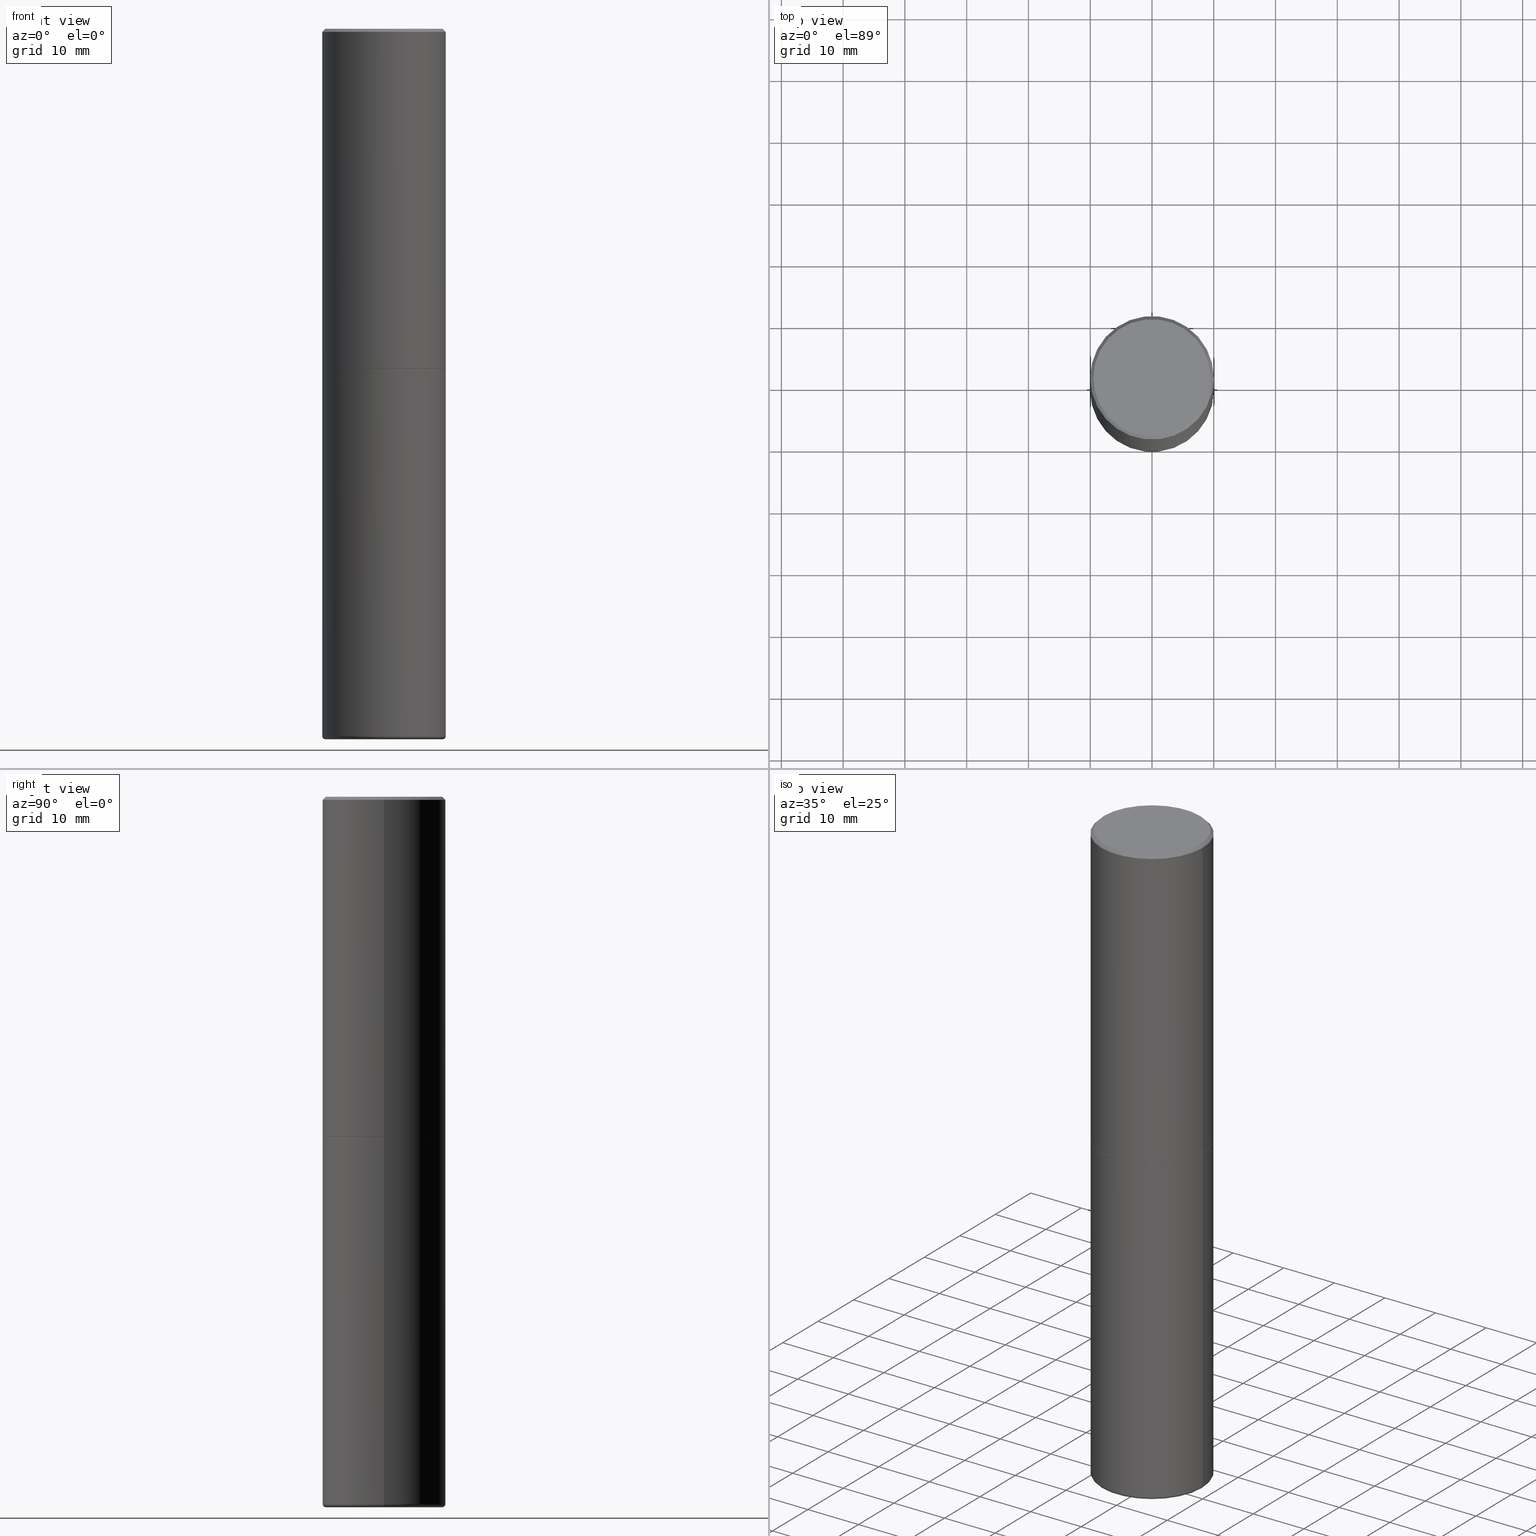
[diagram: canonical four-view strip — front | top / right | iso, engineering-drawing reading convention]
A machine part, canonical four-view strip (front | top / right | iso — engineering-drawing reading convention). The complete STEP part file that produces these views, byte-faithful:
ISO-10303-21;
HEADER;
FILE_DESCRIPTION (( 'STEP AP203' ),
    '1' );
FILE_NAME ('74527.STEP',
    '2024-03-06T15:23:57',
    ( '' ),
    ( '' ),
    'SwSTEP 2.0',
    'SolidWorks 2023',
    '' );
FILE_SCHEMA (( 'CONFIG_CONTROL_DESIGN' ));
ENDSEC;

DATA;
#1 = EDGE_CURVE ( 'NONE', #403, #349, #362, .T. ) ;
#2 = APPROVAL_DATE_TIME ( #31, #148 ) ;
#3 = CARTESIAN_POINT ( 'NONE',  ( 0.3739999999999999991, -1.841965895120088790E-14, -4.527599999999999625 ) ) ;
#4 = SECURITY_CLASSIFICATION_LEVEL ( 'unclassified' ) ;
#5 = EDGE_LOOP ( 'NONE', ( #146, #252, #20, #372 ) ) ;
#6 = FACE_OUTER_BOUND ( 'NONE', #28, .T. ) ;
#7 = EDGE_CURVE ( 'NONE', #373, #185, #165, .T. ) ;
#8 = AXIS2_PLACEMENT_3D ( 'NONE', #131, #330, #40 ) ;
#9 = AXIS2_PLACEMENT_3D ( 'NONE', #140, #273, #198 ) ;
#10 = CYLINDRICAL_SURFACE ( 'NONE', #414, 0.3936999999999999389 ) ;
#11 = DIRECTION ( 'NONE',  ( -2.445468806185136877E-29, 3.491481338843145188E-15, 1.000000000000000000 ) ) ;
#12 = PERSON_AND_ORGANIZATION ( #123, #90 ) ;
#13 = ORIENTED_EDGE ( 'NONE', *, *, #1, .F. ) ;
#14 = DIRECTION ( 'NONE',  ( 1.000000000000000000, -6.982962677686269866E-15, 0.000000000000000000 ) ) ;
#15 = CARTESIAN_POINT ( 'NONE',  ( -0.3937000000000001609, 2.797406750687515575E-15, -1.936584745033357296E-29 ) ) ;
#16 = VERTEX_POINT ( 'NONE', #392 ) ;
#17 = ORIENTED_EDGE ( 'NONE', *, *, #160, .T. ) ;
#18 = AXIS2_PLACEMENT_3D ( 'NONE', #58, #91, #294 ) ;
#19 = CC_DESIGN_DATE_AND_TIME_ASSIGNMENT ( #33, #68, ( #277 ) ) ;
#20 = ORIENTED_EDGE ( 'NONE', *, *, #301, .F. ) ;
#21 = ORIENTED_EDGE ( 'NONE', *, *, #223, .F. ) ;
#22 = AXIS2_PLACEMENT_3D ( 'NONE', #41, #52, #214 ) ;
#23 = LOCAL_TIME ( 10, 23, 57.00000000000000000, #178 ) ;
#24 = PLANE ( 'NONE',  #105 ) ;
#25 = EDGE_CURVE ( 'NONE', #185, #179, #264, .T. ) ;
#26 = CARTESIAN_POINT ( 'NONE',  ( 0.000000000000000000, 0.000000000000000000, 0.000000000000000000 ) ) ;
#27 = PERSON_AND_ORGANIZATION ( #123, #90 ) ;
#28 = EDGE_LOOP ( 'NONE', ( #222, #315, #312, #408 ) ) ;
#29 = CIRCLE ( 'NONE', #360, 0.3739999999999999991 ) ;
#30 = DIRECTION ( 'NONE',  ( 1.000000000000000000, -6.982962677686269866E-15, 0.000000000000000000 ) ) ;
#31 = DATE_AND_TIME ( #356, #116 ) ;
#32 = DIRECTION ( 'NONE',  ( 0.7071067811866199593, -2.468850131083015945E-15, 0.7071067811864750752 ) ) ;
#33 = DATE_AND_TIME ( #297, #227 ) ;
#34 = ORIENTED_EDGE ( 'NONE', *, *, #1, .T. ) ;
#35 = DIRECTION ( 'NONE',  ( 1.000000000000000000, -6.982962677686268288E-15, 0.000000000000000000 ) ) ;
#36 = ORIENTED_EDGE ( 'NONE', *, *, #57, .T. ) ;
#37 = TOROIDAL_SURFACE ( 'NONE', #8, 0.3739999999999999991, 0.01969999999999985998 ) ;
#38 = AXIS2_PLACEMENT_3D ( 'NONE', #233, #232, #363 ) ;
#39 = DIRECTION ( 'NONE',  ( -2.445468806185136877E-29, 3.491481338843145188E-15, 1.000000000000000000 ) ) ;
#40 = DIRECTION ( 'NONE',  ( 1.000000000000000000, -6.982962677686270655E-15, 4.883557194083114022E-29 ) ) ;
#41 = CARTESIAN_POINT ( 'NONE',  ( 5.295418152913293224E-29, -7.560453691130945845E-15, -2.165399999999999547 ) ) ;
#42 = CALENDAR_DATE ( 2024, 6, 3 ) ;
#43 = DIRECTION ( 'NONE',  ( -2.445468806185136597E-29, 3.491481338843145583E-15, 1.000000000000000000 ) ) ;
#44 = DIRECTION ( 'NONE',  ( 1.000000000000000000, -6.982962677686266711E-15, 4.876176775795935793E-29 ) ) ;
#45 = ORIENTED_EDGE ( 'NONE', *, *, #286, .T. ) ;
#46 = AXIS2_PLACEMENT_3D ( 'NONE', #134, #389, #299 ) ;
#47 = CYLINDRICAL_SURFACE ( 'NONE', #260, 0.3937000000000001609 ) ;
#48 = DIRECTION ( 'NONE',  ( -2.438088387897960049E-29, 3.491481338843145188E-15, 1.000000000000000000 ) ) ;
#49 = VERTEX_POINT ( 'NONE', #3 ) ;
#50 = ORIENTED_EDGE ( 'NONE', *, *, #25, .T. ) ;
#51 = FACE_OUTER_BOUND ( 'NONE', #225, .T. ) ;
#52 = DIRECTION ( 'NONE',  ( -2.445468806185136597E-29, 3.491481338843145583E-15, 1.000000000000000000 ) ) ;
#53 = ORIENTED_EDGE ( 'NONE', *, *, #257, .F. ) ;
#54 = EDGE_CURVE ( 'NONE', #378, #403, #269, .T. ) ;
#55 = APPROVAL_PERSON_ORGANIZATION ( #12, #202, #398 ) ;
#56 = EDGE_LOOP ( 'NONE', ( #256, #189 ) ) ;
#57 = EDGE_CURVE ( 'NONE', #349, #182, #226, .T. ) ;
#58 = CARTESIAN_POINT ( 'NONE',  ( 4.890937612370294178E-31, -6.982962677686321191E-17, -0.02000000000000008715 ) ) ;
#59 = AXIS2_PLACEMENT_3D ( 'NONE', #307, #104, #336 ) ;
#60 = AXIS2_PLACEMENT_3D ( 'NONE', #158, #350, #196 ) ;
#61 = APPROVAL_STATUS ( 'not_yet_approved' ) ;
#62 = CC_DESIGN_PERSON_AND_ORGANIZATION_ASSIGNMENT ( #155, #211, ( #138 ) ) ;
#63 = DIRECTION ( 'NONE',  ( -2.445468806185136597E-29, 3.491481338843145583E-15, 1.000000000000000000 ) ) ;
#64 = PLANE ( 'NONE',  #341 ) ;
#65 = APPROVAL_ROLE ( '' ) ;
#66 = AXIS2_PLACEMENT_3D ( 'NONE', #103, #200, #126 ) ;
#67 = CARTESIAN_POINT ( 'NONE',  ( 5.295418152913293224E-29, -7.560453691130945845E-15, -2.165399999999999547 ) ) ;
#68 = DATE_TIME_ROLE ( 'creation_date' ) ;
#69 = ADVANCED_FACE ( 'NONE', ( #237 ), #89, .T. ) ;
#70 = CARTESIAN_POINT ( 'NONE',  ( 0.3937000000000001609, -2.749192406205084400E-15, 1.919750796630860732E-29 ) ) ;
#71 = VECTOR ( 'NONE', #239, 39.37007874015748143 ) ;
#72 = FACE_OUTER_BOUND ( 'NONE', #218, .T. ) ;
#73 = DIRECTION ( 'NONE',  ( -2.445468806185136597E-29, 3.491481338843145583E-15, 1.000000000000000000 ) ) ;
#74 = CARTESIAN_POINT ( 'NONE',  ( 0.3937000000000000499, -2.770807688499515734E-15, -0.02000000000000008715 ) ) ;
#75 = DIRECTION ( 'NONE',  ( 2.445468806185136597E-29, -3.491481338843145583E-15, -1.000000000000000000 ) ) ;
#76 = FACE_OUTER_BOUND ( 'NONE', #118, .T. ) ;
#77 = CARTESIAN_POINT ( 'NONE',  ( 1.102392883140197736E-28, -1.573924872737101586E-14, -4.507899999999999352 ) ) ;
#78 = VECTOR ( 'NONE', #32, 39.37007874015748143 ) ;
#79 = LINE ( 'NONE', #244, #71 ) ;
#80 = CARTESIAN_POINT ( 'NONE',  ( -0.3936999999999999389, -1.294184197668350187E-14, -4.507899999999999352 ) ) ;
#81 = APPROVAL ( #61, 'UNSPECIFIED' ) ;
#82 = ADVANCED_FACE ( 'NONE', ( #72 ), #37, .T. ) ;
#83 = LOCAL_TIME ( 10, 23, 57.00000000000000000, #337 ) ;
#84 = EDGE_CURVE ( 'NONE', #378, #141, #332, .T. ) ;
#85 = ORIENTED_EDGE ( 'NONE', *, *, #381, .F. ) ;
#86 = ORIENTED_EDGE ( 'NONE', *, *, #203, .T. ) ;
#87 = EDGE_CURVE ( 'NONE', #182, #349, #255, .T. ) ;
#88 = VERTEX_POINT ( 'NONE', #212 ) ;
#89 = CONICAL_SURFACE ( 'NONE', #317, 0.3926999999999999935, 0.7853981633975507526 ) ;
#90 = ORGANIZATION ( 'UNSPECIFIED', 'UNSPECIFIED', '' ) ;
#91 = DIRECTION ( 'NONE',  ( 2.445468806185136597E-29, -3.491481338843145583E-15, -1.000000000000000000 ) ) ;
#92 = COORDINATED_UNIVERSAL_TIME_OFFSET ( 5, 0, .BEHIND. ) ;
#93 = DIRECTION ( 'NONE',  ( 2.438088387897960049E-29, -3.491481338843145188E-15, -1.000000000000000000 ) ) ;
#94 = DIRECTION ( 'NONE',  ( 1.000000000000000000, -6.982962677686268288E-15, 0.000000000000000000 ) ) ;
#95 = DIRECTION ( 'NONE',  ( 1.000000000000000000, -6.982962677686266711E-15, 4.876176775795935793E-29 ) ) ;
#96 = CIRCLE ( 'NONE', #156, 0.01969999999999985998 ) ;
#97 = EDGE_CURVE ( 'NONE', #145, #185, #122, .T. ) ;
#98 = MANIFOLD_SOLID_BREP ( 'Body-Move/Copy2[1]', #186 ) ;
#99 = APPLICATION_PROTOCOL_DEFINITION ( 'international standard', 'config_control_design', 1994, #133 ) ;
#100 = CARTESIAN_POINT ( 'NONE',  ( -0.3936999999999999389, 2.797406750687513998E-15, -1.936584745033356455E-29 ) ) ;
#101 = PERSON_AND_ORGANIZATION ( #123, #90 ) ;
#102 = ADVANCED_FACE ( 'NONE', ( #106 ), #47, .T. ) ;
#103 = CARTESIAN_POINT ( 'NONE',  ( -0.3739999999999999991, -1.308181889562824196E-14, -4.507899999999999352 ) ) ;
#104 = DIRECTION ( 'NONE',  ( -2.445468806185136597E-29, 3.491481338843145583E-15, 1.000000000000000000 ) ) ;
#105 = AXIS2_PLACEMENT_3D ( 'NONE', #388, #93, #194 ) ;
#106 = FACE_OUTER_BOUND ( 'NONE', #190, .T. ) ;
#107 = DIRECTION ( 'NONE',  ( -2.445468806185136597E-29, 3.491481338843145583E-15, 1.000000000000000000 ) ) ;
#108 = CARTESIAN_POINT ( 'NONE',  ( 1.102392883140197736E-28, -1.573924872737101586E-14, -4.507899999999999352 ) ) ;
#109 = DIRECTION ( 'NONE',  ( -6.982962677686266711E-15, -1.000000000000000000, 3.491481338843145583E-15 ) ) ;
#110 = DATE_AND_TIME ( #271, #83 ) ;
#111 = ORIENTED_EDGE ( 'NONE', *, *, #160, .F. ) ;
#112 = DIRECTION ( 'NONE',  ( -1.000000000000000000, 6.982962677686265922E-15, -4.876176775795935793E-29 ) ) ;
#113 = CARTESIAN_POINT ( 'NONE',  ( 5.295418152913293224E-29, -7.560453691130945845E-15, -2.165399999999999547 ) ) ;
#114 = ORIENTED_EDGE ( 'NONE', *, *, #415, .T. ) ;
#115 = ORIENTED_EDGE ( 'NONE', *, *, #302, .T. ) ;
#116 = LOCAL_TIME ( 10, 23, 57.00000000000000000, #167 ) ;
#117 = EDGE_LOOP ( 'NONE', ( #280, #45, #282, #308 ) ) ;
#118 = EDGE_LOOP ( 'NONE', ( #314, #249 ) ) ;
#119 =( GEOMETRIC_REPRESENTATION_CONTEXT ( 3 ) GLOBAL_UNCERTAINTY_ASSIGNED_CONTEXT ( ( #327 ) ) GLOBAL_UNIT_ASSIGNED_CONTEXT ( ( #151, #412, #154 ) ) REPRESENTATION_CONTEXT ( 'NONE', 'WORKASPACE' ) );
#120 = ORIENTED_EDGE ( 'NONE', *, *, #87, .F. ) ;
#121 = DIRECTION ( 'NONE',  ( 1.000000000000000000, 0.000000000000000000, 0.000000000000000000 ) ) ;
#122 = CIRCLE ( 'NONE', #213, 0.3936999999999999389 ) ;
#123 = PERSON ( 'UNSPECIFIED', 'UNSPECIFIED', 'UNSPECIFIED', ('UNSPECIFIED'), ('UNSPECIFIED'), ('UNSPECIFIED') ) ;
#124 = LENGTH_MEASURE_WITH_UNIT ( LENGTH_MEASURE( 0.02539999999999999897 ), #291 );
#125 = CARTESIAN_POINT ( 'NONE',  ( 1.107210456688382298E-28, -1.580803090974622389E-14, -4.527599999999999625 ) ) ;
#126 = DIRECTION ( 'NONE',  ( -1.000000000000000000, 7.105427357600978193E-15, 0.000000000000000000 ) ) ;
#127 = FACE_OUTER_BOUND ( 'NONE', #56, .T. ) ;
#128 = VECTOR ( 'NONE', #400, 39.37007874015748143 ) ;
#129 = AXIS2_PLACEMENT_3D ( 'NONE', #292, #234, #94 ) ;
#130 = PERSON_AND_ORGANIZATION ( #123, #90 ) ;
#131 = CARTESIAN_POINT ( 'NONE',  ( 1.102392883140197736E-28, -1.573924872737101586E-14, -4.507899999999999352 ) ) ;
#132 = DIRECTION ( 'NONE',  ( 1.000000000000000000, -6.982962677686265133E-15, 0.000000000000000000 ) ) ;
#133 = APPLICATION_CONTEXT ( 'configuration controlled 3d designs of mechanical parts and assemblies' ) ;
#134 = CARTESIAN_POINT ( 'NONE',  ( 4.890937612370294178E-31, -6.982962677686321191E-17, -0.02000000000000008715 ) ) ;
#135 = ADVANCED_FACE ( 'NONE', ( #76 ), #139, .F. ) ;
#136 = AXIS2_PLACEMENT_3D ( 'NONE', #77, #107, #172 ) ;
#137 = DIRECTION ( 'NONE',  ( -1.000000000000000000, 6.982962677686265922E-15, 0.000000000000000000 ) ) ;
#138 = PRODUCT_DEFINITION_FORMATION_WITH_SPECIFIED_SOURCE ( 'ANY', '', #316, .NOT_KNOWN. ) ;
#139 = PLANE ( 'NONE',  #204 ) ;
#140 = CARTESIAN_POINT ( 'NONE',  ( 1.107210456688382298E-28, -1.580803090974622389E-14, -4.527599999999999625 ) ) ;
#141 = VERTEX_POINT ( 'NONE', #274 ) ;
#142 = DIRECTION ( 'NONE',  ( 2.438088387897960049E-29, -3.491481338843145188E-15, -1.000000000000000000 ) ) ;
#143 = AXIS2_PLACEMENT_3D ( 'NONE', #418, #43, #170 ) ;
#144 = AXIS2_PLACEMENT_3D ( 'NONE', #261, #63, #30 ) ;
#145 = VERTEX_POINT ( 'NONE', #306 ) ;
#146 = ORIENTED_EDGE ( 'NONE', *, *, #84, .T. ) ;
#147 = ORIENTED_EDGE ( 'NONE', *, *, #381, .T. ) ;
#148 = APPROVAL ( #364, 'UNSPECIFIED' ) ;
#149 = ORIENTED_EDGE ( 'NONE', *, *, #57, .F. ) ;
#150 = SECURITY_CLASSIFICATION ( '', '', #4 ) ;
#151 =( CONVERSION_BASED_UNIT ( 'INCH', #124 ) LENGTH_UNIT ( ) NAMED_UNIT ( #293 ) );
#152 = ORIENTED_EDGE ( 'NONE', *, *, #344, .T. ) ;
#153 = PRODUCT_DEFINITION_SHAPE ( 'NONE', 'NONE',  #277 ) ;
#154 =( NAMED_UNIT ( * ) SI_UNIT ( $, .STERADIAN. ) SOLID_ANGLE_UNIT ( ) );
#155 = PERSON_AND_ORGANIZATION ( #123, #90 ) ;
#156 = AXIS2_PLACEMENT_3D ( 'NONE', #168, #109, #343 ) ;
#157 = CC_DESIGN_APPROVAL ( #148, ( #277 ) ) ;
#158 = CARTESIAN_POINT ( 'NONE',  ( 5.428027354543142984E-45, -7.749784485978325769E-31, -2.219626494852213988E-16 ) ) ;
#159 = EDGE_CURVE ( 'NONE', #141, #88, #79, .T. ) ;
#160 = EDGE_CURVE ( 'NONE', #318, #182, #180, .T. ) ;
#161 = CARTESIAN_POINT ( 'NONE',  ( 0.3926999999999999935, -1.030266313465834305E-14, -2.165399999999999547 ) ) ;
#162 = DIRECTION ( 'NONE',  ( 1.000000000000000000, -6.982962677686268288E-15, 0.000000000000000000 ) ) ;
#163 = CALENDAR_DATE ( 2024, 6, 3 ) ;
#164 = ADVANCED_FACE ( 'NONE', ( #51 ), #10, .T. ) ;
#165 = CIRCLE ( 'NONE', #66, 0.01969999999999985998 ) ;
#166 = CARTESIAN_POINT ( 'NONE',  ( 5.295418152913293224E-29, -7.560453691130945845E-15, -2.165399999999999547 ) ) ;
#167 = COORDINATED_UNIVERSAL_TIME_OFFSET ( 5, 0, .BEHIND. ) ;
#168 = CARTESIAN_POINT ( 'NONE',  ( 0.3739999999999999991, -1.835087676882567987E-14, -4.507899999999999352 ) ) ;
#169 = EDGE_CURVE ( 'NONE', #284, #349, #342, .T. ) ;
#170 = DIRECTION ( 'NONE',  ( 1.000000000000000000, -6.982962677686265922E-15, 0.000000000000000000 ) ) ;
#171 = CONICAL_SURFACE ( 'NONE', #413, 0.3937000000000000499, 0.7853981633974447263 ) ;
#172 = DIRECTION ( 'NONE',  ( 1.000000000000000000, -6.982962677686270655E-15, 4.883557194083114022E-29 ) ) ;
#173 = AXIS2_PLACEMENT_3D ( 'NONE', #166, #300, #132 ) ;
#174 = ADVANCED_FACE ( 'NONE', ( #241 ), #171, .T. ) ;
#175 = ORIENTED_EDGE ( 'NONE', *, *, #84, .F. ) ;
#176 = DIRECTION ( 'NONE',  ( 1.000000000000000000, -6.982962677686266711E-15, 4.876176775795935793E-29 ) ) ;
#177 = DIRECTION ( 'NONE',  ( -2.445468806185136597E-29, 3.491481338843145583E-15, 1.000000000000000000 ) ) ;
#178 = COORDINATED_UNIVERSAL_TIME_OFFSET ( 5, 0, .BEHIND. ) ;
#179 = VERTEX_POINT ( 'NONE', #346 ) ;
#180 = LINE ( 'NONE', #272, #366 ) ;
#181 = CARTESIAN_POINT ( 'NONE',  ( 0.3936999999999999389, -2.749192406205082822E-15, 1.919750796630859611E-29 ) ) ;
#182 = VERTEX_POINT ( 'NONE', #246 ) ;
#183 = EDGE_CURVE ( 'NONE', #88, #403, #235, .T. ) ;
#184 = VECTOR ( 'NONE', #338, 39.37007874015748143 ) ;
#185 = VERTEX_POINT ( 'NONE', #80 ) ;
#186 = CLOSED_SHELL ( 'NONE', ( #285, #279, #135, #164, #82, #333 ) ) ;
#187 = ORIENTED_EDGE ( 'NONE', *, *, #223, .T. ) ;
#188 = CC_DESIGN_PERSON_AND_ORGANIZATION_ASSIGNMENT ( #101, #365, ( #138 ) ) ;
#189 = ORIENTED_EDGE ( 'NONE', *, *, #302, .F. ) ;
#190 = EDGE_LOOP ( 'NONE', ( #21, #380, #34, #120 ) ) ;
#191 = FACE_OUTER_BOUND ( 'NONE', #217, .T. ) ;
#192 = AXIS2_PLACEMENT_3D ( 'NONE', #339, #73, #44 ) ;
#193 = AXIS2_PLACEMENT_3D ( 'NONE', #26, #385, #95 ) ;
#194 = DIRECTION ( 'NONE',  ( -1.000000000000000000, 6.982962677686265922E-15, -4.876176775795935793E-29 ) ) ;
#195 = FACE_OUTER_BOUND ( 'NONE', #254, .T. ) ;
#196 = DIRECTION ( 'NONE',  ( 1.000000000000000000, -6.982962677686266711E-15, 4.877734241229871763E-29 ) ) ;
#197 = DIRECTION ( 'NONE',  ( -2.445468806185136877E-29, 3.491481338843145188E-15, 1.000000000000000000 ) ) ;
#198 = DIRECTION ( 'NONE',  ( 1.000000000000000000, -6.982962677686270655E-15, 0.000000000000000000 ) ) ;
#199 = CARTESIAN_POINT ( 'NONE',  ( 5.295418152913293224E-29, -7.560453691130945845E-15, -2.165399999999999547 ) ) ;
#200 = DIRECTION ( 'NONE',  ( 7.105427357601001859E-15, 1.000000000000000000, -3.491481338843145583E-15 ) ) ;
#201 = APPROVAL_DATE_TIME ( #340, #202 ) ;
#202 = APPROVAL ( #215, 'UNSPECIFIED' ) ;
#203 = EDGE_CURVE ( 'NONE', #49, #145, #96, .T. ) ;
#204 = AXIS2_PLACEMENT_3D ( 'NONE', #345, #142, #112 ) ;
#205 = CIRCLE ( 'NONE', #144, 0.3936999999999999389 ) ;
#206 = DIRECTION ( 'NONE',  ( -2.445468806185136597E-29, 3.491481338843145583E-15, 1.000000000000000000 ) ) ;
#207 = PERSON_AND_ORGANIZATION_ROLE ( 'classification_officer' ) ;
#208 = DIRECTION ( 'NONE',  ( -2.445468806185136597E-29, 3.491481338843145583E-15, 1.000000000000000000 ) ) ;
#209 = CYLINDRICAL_SURFACE ( 'NONE', #192, 0.3936999999999999389 ) ;
#210 = DATE_TIME_ROLE ( 'classification_date' ) ;
#211 = PERSON_AND_ORGANIZATION_ROLE ( 'creator' ) ;
#212 = CARTESIAN_POINT ( 'NONE',  ( -0.3937000000000003830, -1.015989167596963746E-15, -2.164399999999999658 ) ) ;
#213 = AXIS2_PLACEMENT_3D ( 'NONE', #108, #401, #14 ) ;
#214 = DIRECTION ( 'NONE',  ( 1.000000000000000000, -6.982962677686265133E-15, 0.000000000000000000 ) ) ;
#215 = APPROVAL_STATUS ( 'not_yet_approved' ) ;
#216 = DIRECTION ( 'NONE',  ( -0.7071067811865450192, 2.468850131082230634E-15, -0.7071067811865500152 ) ) ;
#217 = EDGE_LOOP ( 'NONE', ( #320, #243, #36, #111 ) ) ;
#218 = EDGE_LOOP ( 'NONE', ( #283, #115, #86, #85 ) ) ;
#219 = EDGE_CURVE ( 'NONE', #49, #373, #29, .T. ) ;
#220 = CIRCLE ( 'NONE', #22, 0.3937000000000000499 ) ;
#221 = EDGE_LOOP ( 'NONE', ( #114, #152 ) ) ;
#222 = ORIENTED_EDGE ( 'NONE', *, *, #219, .T. ) ;
#223 = EDGE_CURVE ( 'NONE', #88, #182, #397, .T. ) ;
#224 = EDGE_LOOP ( 'NONE', ( #175, #319 ) ) ;
#225 = EDGE_LOOP ( 'NONE', ( #396, #147, #379, #248 ) ) ;
#226 = CIRCLE ( 'NONE', #46, 0.3937000000000000499 ) ;
#227 = LOCAL_TIME ( 10, 23, 57.00000000000000000, #359 ) ;
#228 = APPROVAL_DATE_TIME ( #322, #81 ) ;
#229 = MECHANICAL_CONTEXT ( 'NONE', #263, 'mechanical' ) ;
#230 = DIRECTION ( 'NONE',  ( 2.438088387897960049E-29, -3.491481338843145188E-15, -1.000000000000000000 ) ) ;
#231 = PERSON_AND_ORGANIZATION ( #123, #90 ) ;
#232 = DIRECTION ( 'NONE',  ( -2.445468806185136597E-29, 3.491481338843145583E-15, 1.000000000000000000 ) ) ;
#233 = CARTESIAN_POINT ( 'NONE',  ( 5.428027354543142984E-45, -7.749784485978325769E-31, -2.219626494852213988E-16 ) ) ;
#234 = DIRECTION ( 'NONE',  ( -2.445468806185136597E-29, 3.491481338843145583E-15, 1.000000000000000000 ) ) ;
#235 = CIRCLE ( 'NONE', #290, 0.3937000000000002720 ) ;
#236 = CC_DESIGN_SECURITY_CLASSIFICATION ( #150, ( #138 ) ) ;
#237 = FACE_OUTER_BOUND ( 'NONE', #5, .T. ) ;
#238 = DIRECTION ( 'NONE',  ( 1.000000000000000000, -6.982962677686269077E-15, 0.000000000000000000 ) ) ;
#239 = DIRECTION ( 'NONE',  ( -0.7071067811866199593, 7.493145998870616062E-15, 0.7071067811864750752 ) ) ;
#240 = LINE ( 'NONE', #181, #128 ) ;
#241 = FACE_OUTER_BOUND ( 'NONE', #409, .T. ) ;
#242 = FACE_OUTER_BOUND ( 'NONE', #224, .T. ) ;
#243 = ORIENTED_EDGE ( 'NONE', *, *, #169, .T. ) ;
#244 = CARTESIAN_POINT ( 'NONE',  ( -0.3926999999999999935, -4.770152367801032067E-15, -2.165399999999999547 ) ) ;
#245 = CIRCLE ( 'NONE', #59, 0.3937000000000002720 ) ;
#246 = CARTESIAN_POINT ( 'NONE',  ( -0.3937000000000000499, 2.679362779428219918E-15, -0.02000000000000008715 ) ) ;
#247 = APPROVAL_PERSON_ORGANIZATION ( #27, #148, #65 ) ;
#248 = ORIENTED_EDGE ( 'NONE', *, *, #352, .F. ) ;
#249 = ORIENTED_EDGE ( 'NONE', *, *, #352, .T. ) ;
#250 = MANIFOLD_SOLID_BREP ( 'Body-Move/Copy2[2]', #351 ) ;
#251 = PRODUCT_RELATED_PRODUCT_CATEGORY ( 'detail', '', ( #316 ) ) ;
#252 = ORIENTED_EDGE ( 'NONE', *, *, #159, .T. ) ;
#253 = ORIENTED_EDGE ( 'NONE', *, *, #97, .T. ) ;
#254 = EDGE_LOOP ( 'NONE', ( #276, #187, #149, #13 ) ) ;
#255 = CIRCLE ( 'NONE', #143, 0.3937000000000000499 ) ;
#256 = ORIENTED_EDGE ( 'NONE', *, *, #219, .F. ) ;
#257 = EDGE_CURVE ( 'NONE', #16, #179, #220, .T. ) ;
#258 = PERSON_AND_ORGANIZATION_ROLE ( 'creator' ) ;
#259 = EDGE_CURVE ( 'NONE', #145, #16, #240, .T. ) ;
#260 = AXIS2_PLACEMENT_3D ( 'NONE', #310, #376, #176 ) ;
#261 = CARTESIAN_POINT ( 'NONE',  ( 1.102392883140197736E-28, -1.573924872737101586E-14, -4.507899999999999352 ) ) ;
#262 = CC_DESIGN_PERSON_AND_ORGANIZATION_ASSIGNMENT ( #394, #207, ( #150 ) ) ;
#263 = APPLICATION_CONTEXT ( 'configuration controlled 3d designs of mechanical parts and assemblies' ) ;
#264 = LINE ( 'NONE', #100, #404 ) ;
#265 = ADVANCED_FACE ( 'NONE', ( #242 ), #402, .F. ) ;
#266 = FACE_OUTER_BOUND ( 'NONE', #117, .T. ) ;
#267 = CARTESIAN_POINT ( 'NONE',  ( 0.3937000000000000499, -2.770807688499515734E-15, -0.02000000000000008715 ) ) ;
#268 = AXIS2_PLACEMENT_3D ( 'NONE', #113, #48, #303 ) ;
#269 = LINE ( 'NONE', #328, #78 ) ;
#270 = CARTESIAN_POINT ( 'NONE',  ( 0.3737000000000003097, -2.667287895133369937E-15, -2.219626494852029345E-16 ) ) ;
#271 = CALENDAR_DATE ( 2024, 6, 3 ) ;
#272 = CARTESIAN_POINT ( 'NONE',  ( -0.3937000000000000499, 2.679362779428219918E-15, -0.02000000000000008715 ) ) ;
#273 = DIRECTION ( 'NONE',  ( -2.445468806185136597E-29, 3.491481338843145583E-15, 1.000000000000000000 ) ) ;
#274 = CARTESIAN_POINT ( 'NONE',  ( -0.3926999999999999935, -4.764853913452808876E-15, -2.165399999999999547 ) ) ;
#275 = CARTESIAN_POINT ( 'NONE',  ( 1.107210456688382298E-28, -1.580803090974622389E-14, -4.527599999999999625 ) ) ;
#276 = ORIENTED_EDGE ( 'NONE', *, *, #301, .T. ) ;
#277 = PRODUCT_DEFINITION ( 'UNKNOWN', '', #138, #347 ) ;
#278 = AXIS2_PLACEMENT_3D ( 'NONE', #288, #289, #121 ) ;
#279 = ADVANCED_FACE ( 'NONE', ( #6 ), #325, .T. ) ;
#280 = ORIENTED_EDGE ( 'NONE', *, *, #159, .F. ) ;
#281 = ORIENTED_EDGE ( 'NONE', *, *, #415, .F. ) ;
#282 = ORIENTED_EDGE ( 'NONE', *, *, #54, .T. ) ;
#283 = ORIENTED_EDGE ( 'NONE', *, *, #7, .F. ) ;
#284 = VERTEX_POINT ( 'NONE', #270 ) ;
#285 = ADVANCED_FACE ( 'NONE', ( #313 ), #209, .T. ) ;
#286 = EDGE_CURVE ( 'NONE', #141, #378, #374, .T. ) ;
#287 = CIRCLE ( 'NONE', #9, 0.3739999999999999991 ) ;
#288 = CARTESIAN_POINT ( 'NONE',  ( 0.000000000000000000, 0.000000000000000000, 0.000000000000000000 ) ) ;
#289 = DIRECTION ( 'NONE',  ( 0.000000000000000000, 0.000000000000000000, 1.000000000000000000 ) ) ;
#290 = AXIS2_PLACEMENT_3D ( 'NONE', #369, #371, #238 ) ;
#291 =( LENGTH_UNIT ( ) NAMED_UNIT ( * ) SI_UNIT ( $, .METRE. ) );
#292 = CARTESIAN_POINT ( 'NONE',  ( 5.295418152913293224E-29, -7.560453691130945845E-15, -2.165399999999999547 ) ) ;
#293 = DIMENSIONAL_EXPONENTS ( 1.000000000000000000, 0.000000000000000000, 0.000000000000000000, 0.000000000000000000, 0.000000000000000000, 0.000000000000000000, 0.000000000000000000 ) ;
#294 = DIRECTION ( 'NONE',  ( -1.000000000000000000, 6.982962677686265922E-15, 0.000000000000000000 ) ) ;
#295 = DIRECTION ( 'NONE',  ( -2.445468806185136597E-29, 3.491481338843145583E-15, 1.000000000000000000 ) ) ;
#296 = DIRECTION ( 'NONE',  ( -1.000000000000000000, 6.982962677686265922E-15, -4.876176775795935793E-29 ) ) ;
#297 = CALENDAR_DATE ( 2024, 6, 3 ) ;
#298 = APPROVAL_PERSON_ORGANIZATION ( #386, #81, #329 ) ;
#299 = DIRECTION ( 'NONE',  ( 1.000000000000000000, -6.982962677686265922E-15, 0.000000000000000000 ) ) ;
#300 = DIRECTION ( 'NONE',  ( -2.445468806185136597E-29, 3.491481338843145583E-15, 1.000000000000000000 ) ) ;
#301 = EDGE_CURVE ( 'NONE', #403, #88, #245, .T. ) ;
#302 = EDGE_CURVE ( 'NONE', #373, #49, #287, .T. ) ;
#303 = DIRECTION ( 'NONE',  ( 1.000000000000000000, -6.982962677686265922E-15, 4.876176775795935793E-29 ) ) ;
#304 = CC_DESIGN_PERSON_AND_ORGANIZATION_ASSIGNMENT ( #130, #390, ( #316 ) ) ;
#305 = CIRCLE ( 'NONE', #60, 0.3737000000000003097 ) ;
#306 = CARTESIAN_POINT ( 'NONE',  ( 0.3936999999999999389, -1.848844113357609908E-14, -4.507899999999999352 ) ) ;
#307 = CARTESIAN_POINT ( 'NONE',  ( 5.292972684107107621E-29, -7.556962209792102838E-15, -2.164399999999999658 ) ) ;
#308 = ORIENTED_EDGE ( 'NONE', *, *, #183, .F. ) ;
#309 = ORIENTED_EDGE ( 'NONE', *, *, #87, .T. ) ;
#310 = CARTESIAN_POINT ( 'NONE',  ( 0.000000000000000000, 0.000000000000000000, 0.000000000000000000 ) ) ;
#311 = DIRECTION ( 'NONE',  ( 1.000000000000000000, -6.982962677686270655E-15, 0.000000000000000000 ) ) ;
#312 = ORIENTED_EDGE ( 'NONE', *, *, #97, .F. ) ;
#313 = FACE_OUTER_BOUND ( 'NONE', #406, .T. ) ;
#314 = ORIENTED_EDGE ( 'NONE', *, *, #257, .T. ) ;
#315 = ORIENTED_EDGE ( 'NONE', *, *, #7, .T. ) ;
#316 = PRODUCT ( '74527', '74527', '', ( #229 ) ) ;
#317 = AXIS2_PLACEMENT_3D ( 'NONE', #199, #367, #162 ) ;
#318 = VERTEX_POINT ( 'NONE', #355 ) ;
#319 = ORIENTED_EDGE ( 'NONE', *, *, #286, .F. ) ;
#320 = ORIENTED_EDGE ( 'NONE', *, *, #344, .F. ) ;
#321 = AXIS2_PLACEMENT_3D ( 'NONE', #67, #295, #35 ) ;
#322 = DATE_AND_TIME ( #163, #334 ) ;
#323 = FACE_OUTER_BOUND ( 'NONE', #221, .T. ) ;
#324 = CYLINDRICAL_SURFACE ( 'NONE', #193, 0.3937000000000001609 ) ;
#325 = TOROIDAL_SURFACE ( 'NONE', #136, 0.3739999999999999991, 0.01969999999999985998 ) ;
#326 = CONICAL_SURFACE ( 'NONE', #18, 0.3937000000000000499, 0.7853981633974447263 ) ;
#327 = UNCERTAINTY_MEASURE_WITH_UNIT (LENGTH_MEASURE( 1.000000000000000082E-05 ), #151, 'distance_accuracy_value', 'NONE');
#328 = CARTESIAN_POINT ( 'NONE',  ( 0.3926999999999999935, -1.030266313465834305E-14, -2.165399999999999547 ) ) ;
#329 = APPROVAL_ROLE ( '' ) ;
#330 = DIRECTION ( 'NONE',  ( -2.445468806185136597E-29, 3.491481338843145583E-15, 1.000000000000000000 ) ) ;
#331 = SHAPE_DEFINITION_REPRESENTATION ( #153, #391 ) ;
#332 = CIRCLE ( 'NONE', #321, 0.3926999999999999935 ) ;
#333 = ADVANCED_FACE ( 'NONE', ( #127 ), #64, .T. ) ;
#334 = LOCAL_TIME ( 10, 23, 57.00000000000000000, #92 ) ;
#335 = CC_DESIGN_DATE_AND_TIME_ASSIGNMENT ( #110, #210, ( #150 ) ) ;
#336 = DIRECTION ( 'NONE',  ( 1.000000000000000000, -6.982962677686269077E-15, 0.000000000000000000 ) ) ;
#337 = COORDINATED_UNIVERSAL_TIME_OFFSET ( 5, 0, .BEHIND. ) ;
#338 = DIRECTION ( 'NONE',  ( 0.7071067811865450192, -7.319954787623246579E-15, -0.7071067811865500152 ) ) ;
#339 = CARTESIAN_POINT ( 'NONE',  ( 0.000000000000000000, 0.000000000000000000, 0.000000000000000000 ) ) ;
#340 = DATE_AND_TIME ( #42, #23 ) ;
#341 = AXIS2_PLACEMENT_3D ( 'NONE', #125, #230, #296 ) ;
#342 = LINE ( 'NONE', #74, #184 ) ;
#343 = DIRECTION ( 'NONE',  ( 1.000000000000000000, -6.982962677686179936E-15, 0.000000000000000000 ) ) ;
#344 = EDGE_CURVE ( 'NONE', #284, #318, #375, .T. ) ;
#345 = CARTESIAN_POINT ( 'NONE',  ( 5.295418152913293224E-29, -7.560453691130945845E-15, -2.165399999999999547 ) ) ;
#346 = CARTESIAN_POINT ( 'NONE',  ( -0.3937000000000000499, -8.852444458563466857E-15, -2.165399999999999547 ) ) ;
#347 = DESIGN_CONTEXT ( 'detailed design', #133, 'design' ) ;
#348 = ORIENTED_EDGE ( 'NONE', *, *, #169, .F. ) ;
#349 = VERTEX_POINT ( 'NONE', #267 ) ;
#350 = DIRECTION ( 'NONE',  ( -2.445468806185136597E-29, 3.491481338843145583E-15, 1.000000000000000000 ) ) ;
#351 = CLOSED_SHELL ( 'NONE', ( #69, #358, #384, #174, #102, #357, #265, #407 ) ) ;
#352 = EDGE_CURVE ( 'NONE', #179, #16, #387, .T. ) ;
#353 = APPLICATION_PROTOCOL_DEFINITION ( 'international standard', 'config_control_design', 1994, #263 ) ;
#354 = CARTESIAN_POINT ( 'NONE',  ( 0.3937000000000002720, -1.030615461599718763E-14, -2.164399999999999658 ) ) ;
#355 = CARTESIAN_POINT ( 'NONE',  ( -0.3737000000000003097, 2.644447966039789847E-15, -2.219626494852397645E-16 ) ) ;
#356 = CALENDAR_DATE ( 2024, 6, 3 ) ;
#357 = ADVANCED_FACE ( 'NONE', ( #266 ), #411, .T. ) ;
#358 = ADVANCED_FACE ( 'NONE', ( #195 ), #324, .T. ) ;
#359 = COORDINATED_UNIVERSAL_TIME_OFFSET ( 5, 0, .BEHIND. ) ;
#360 = AXIS2_PLACEMENT_3D ( 'NONE', #275, #177, #311 ) ;
#361 = CC_DESIGN_APPROVAL ( #81, ( #138 ) ) ;
#362 = LINE ( 'NONE', #70, #395 ) ;
#363 = DIRECTION ( 'NONE',  ( 1.000000000000000000, -6.982962677686266711E-15, 4.877734241229871763E-29 ) ) ;
#364 = APPROVAL_STATUS ( 'not_yet_approved' ) ;
#365 = PERSON_AND_ORGANIZATION_ROLE ( 'design_supplier' ) ;
#366 = VECTOR ( 'NONE', #216, 39.37007874015748143 ) ;
#367 = DIRECTION ( 'NONE',  ( -2.445468806185136597E-29, 3.491481338843145583E-15, 1.000000000000000000 ) ) ;
#368 = CARTESIAN_POINT ( 'NONE',  ( 0.000000000000000000, 0.000000000000000000, 0.000000000000000000 ) ) ;
#369 = CARTESIAN_POINT ( 'NONE',  ( 5.292972684107107621E-29, -7.556962209792102838E-15, -2.164399999999999658 ) ) ;
#370 = CARTESIAN_POINT ( 'NONE',  ( 4.890937612370294178E-31, -6.982962677686321191E-17, -0.02000000000000008715 ) ) ;
#371 = DIRECTION ( 'NONE',  ( -2.445468806185136597E-29, 3.491481338843145583E-15, 1.000000000000000000 ) ) ;
#372 = ORIENTED_EDGE ( 'NONE', *, *, #54, .F. ) ;
#373 = VERTEX_POINT ( 'NONE', #383 ) ;
#374 = CIRCLE ( 'NONE', #416, 0.3926999999999999935 ) ;
#375 = CIRCLE ( 'NONE', #38, 0.3737000000000003097 ) ;
#376 = DIRECTION ( 'NONE',  ( -2.445468806185136597E-29, 3.491481338843145583E-15, 1.000000000000000000 ) ) ;
#377 = CARTESIAN_POINT ( 'NONE',  ( 5.295418152913293224E-29, -7.560453691130945845E-15, -2.165399999999999547 ) ) ;
#378 = VERTEX_POINT ( 'NONE', #161 ) ;
#379 = ORIENTED_EDGE ( 'NONE', *, *, #259, .T. ) ;
#380 = ORIENTED_EDGE ( 'NONE', *, *, #183, .T. ) ;
#381 = EDGE_CURVE ( 'NONE', #185, #145, #205, .T. ) ;
#382 = CC_DESIGN_APPROVAL ( #202, ( #150 ) ) ;
#383 = CARTESIAN_POINT ( 'NONE',  ( -0.3739999999999999991, -1.304622152734347672E-14, -4.527599999999999625 ) ) ;
#384 = ADVANCED_FACE ( 'NONE', ( #191 ), #326, .T. ) ;
#385 = DIRECTION ( 'NONE',  ( -2.445468806185136597E-29, 3.491481338843145583E-15, 1.000000000000000000 ) ) ;
#386 = PERSON_AND_ORGANIZATION ( #123, #90 ) ;
#387 = CIRCLE ( 'NONE', #173, 0.3937000000000000499 ) ;
#388 = CARTESIAN_POINT ( 'NONE',  ( 2.609533152651359776E-15, 0.3737000000000003097, -1.415747901068295320E-15 ) ) ;
#389 = DIRECTION ( 'NONE',  ( -2.445468806185136597E-29, 3.491481338843145583E-15, 1.000000000000000000 ) ) ;
#390 = PERSON_AND_ORGANIZATION_ROLE ( 'design_owner' ) ;
#391 = ADVANCED_BREP_SHAPE_REPRESENTATION ( '74527', ( #98, #250, #278 ), #119 ) ;
#392 = CARTESIAN_POINT ( 'NONE',  ( 0.3937000000000000499, -1.030964609733602906E-14, -2.165399999999999547 ) ) ;
#393 = DIRECTION ( 'NONE',  ( 1.000000000000000000, -6.982962677686268288E-15, 0.000000000000000000 ) ) ;
#394 = PERSON_AND_ORGANIZATION ( #123, #90 ) ;
#395 = VECTOR ( 'NONE', #197, 39.37007874015748143 ) ;
#396 = ORIENTED_EDGE ( 'NONE', *, *, #25, .F. ) ;
#397 = LINE ( 'NONE', #15, #410 ) ;
#398 = APPROVAL_ROLE ( '' ) ;
#399 = DIRECTION ( 'NONE',  ( 1.000000000000000000, -6.982962677686266711E-15, 4.876176775795935793E-29 ) ) ;
#400 = DIRECTION ( 'NONE',  ( -2.445468806185136877E-29, 3.491481338843145188E-15, 1.000000000000000000 ) ) ;
#401 = DIRECTION ( 'NONE',  ( -2.445468806185136597E-29, 3.491481338843145583E-15, 1.000000000000000000 ) ) ;
#402 = PLANE ( 'NONE',  #268 ) ;
#403 = VERTEX_POINT ( 'NONE', #354 ) ;
#404 = VECTOR ( 'NONE', #39, 39.37007874015748143 ) ;
#405 = ORIENTED_EDGE ( 'NONE', *, *, #259, .F. ) ;
#406 = EDGE_LOOP ( 'NONE', ( #253, #50, #53, #405 ) ) ;
#407 = ADVANCED_FACE ( 'NONE', ( #323 ), #24, .F. ) ;
#408 = ORIENTED_EDGE ( 'NONE', *, *, #203, .F. ) ;
#409 = EDGE_LOOP ( 'NONE', ( #348, #281, #17, #309 ) ) ;
#410 = VECTOR ( 'NONE', #11, 39.37007874015748143 ) ;
#411 = CONICAL_SURFACE ( 'NONE', #129, 0.3926999999999999935, 0.7853981633975507526 ) ;
#412 =( NAMED_UNIT ( * ) PLANE_ANGLE_UNIT ( ) SI_UNIT ( $, .RADIAN. ) );
#413 = AXIS2_PLACEMENT_3D ( 'NONE', #370, #75, #137 ) ;
#414 = AXIS2_PLACEMENT_3D ( 'NONE', #368, #208, #399 ) ;
#415 = EDGE_CURVE ( 'NONE', #318, #284, #305, .T. ) ;
#416 = AXIS2_PLACEMENT_3D ( 'NONE', #377, #206, #393 ) ;
#417 = CC_DESIGN_PERSON_AND_ORGANIZATION_ASSIGNMENT ( #231, #258, ( #277 ) ) ;
#418 = CARTESIAN_POINT ( 'NONE',  ( 4.890937612370294178E-31, -6.982962677686321191E-17, -0.02000000000000008715 ) ) ;
ENDSEC;
END-ISO-10303-21;
